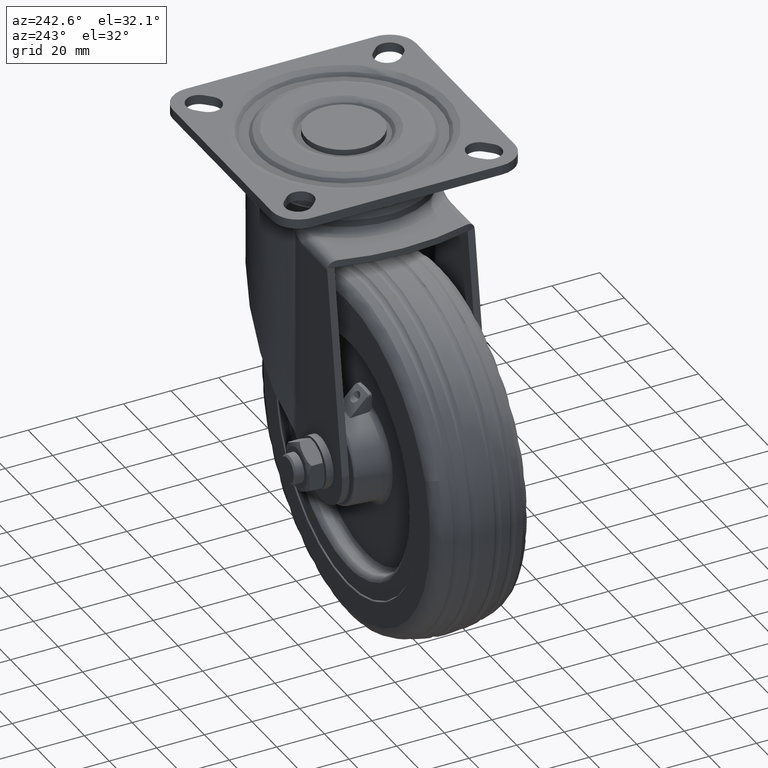
[diagram: clean part render]
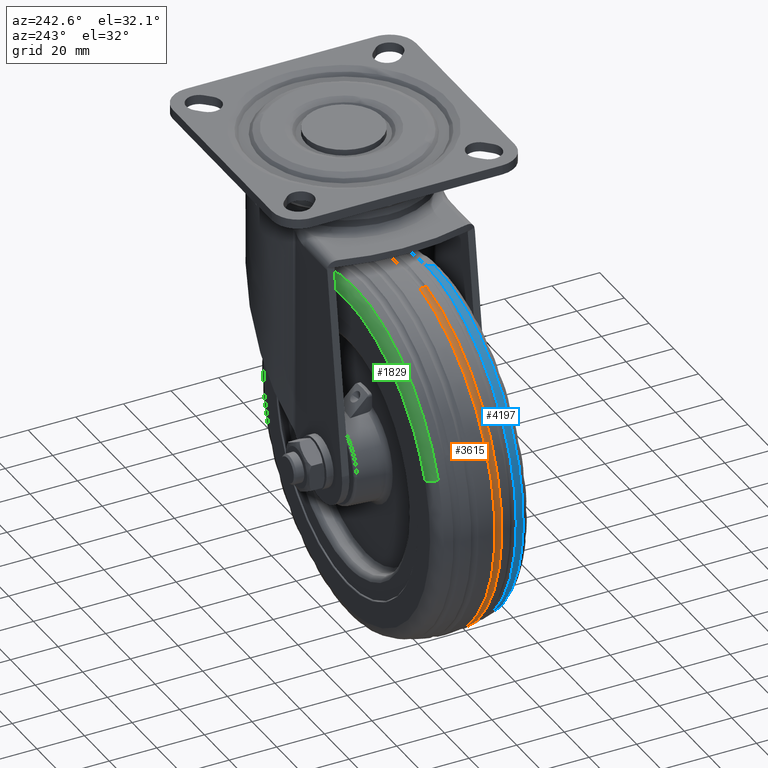
[diagram: same view with three faces highlighted in distinct colors, each labeled with its STEP entity id]
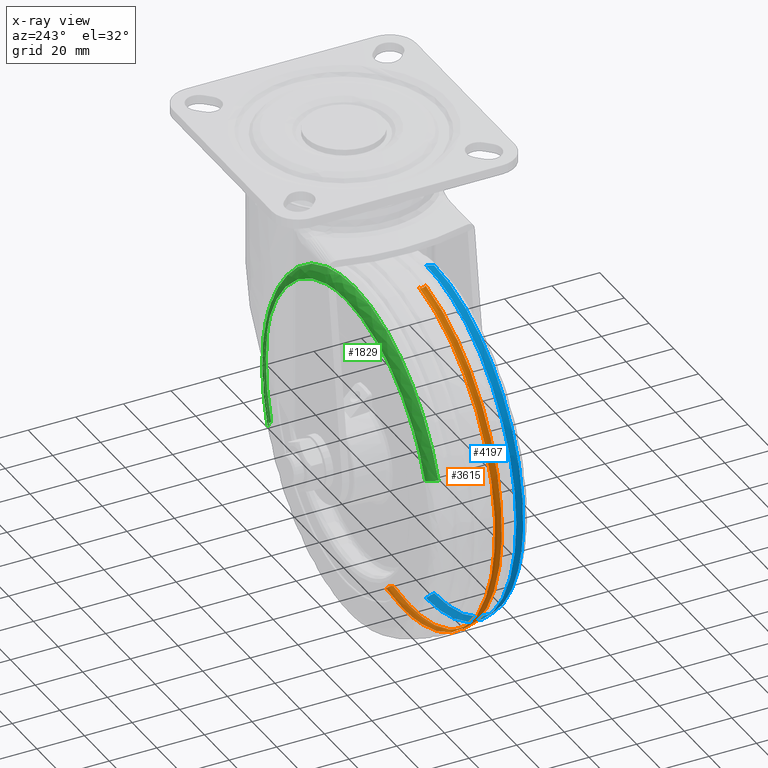
[diagram: x-ray of the same camera — body ghosted, the three highlighted faces saturated]
A machine part, auxiliary view with three faces highlighted in distinct colors.
The next image is the same camera in x-ray (body ghosted, the three faces saturated) — at least one of them is partly hidden behind the body in this view.
Their STEP definitions:

[orange] entity #3615 — the highlighted face is a freeform B-spline surface patch.
#3350=CARTESIAN_POINT('',(-41.0,-3.425194631083943,-189.882526454642200));
#3351=VERTEX_POINT('',#3350);
#3365=CARTESIAN_POINT('',(-54.106171554771272,-3.425193700810691,-41.273303924045237));
#3366=VERTEX_POINT('',#3365);
#3367=CARTESIAN_POINT('',(-54.106171554771272,-3.425193700810691,-41.273303924045237));
#3368=CARTESIAN_POINT('',(-59.088585388398997,-3.425193703578001,-42.158218080495992));
#3369=CARTESIAN_POINT('',(-66.076814817460104,-3.425193712112562,-44.148498641446317));
#3370=CARTESIAN_POINT('',(-75.449871957422616,-3.425193733126245,-48.358119332888712));
#3371=CARTESIAN_POINT('',(-82.964507859064014,-3.425193756129907,-52.724210285632239));
#3372=CARTESIAN_POINT('',(-90.196062801224429,-3.425193786793735,-58.298547319526122));
#3373=CARTESIAN_POINT('',(-96.897211100785654,-3.425193824162999,-64.905625726619689));
#3374=CARTESIAN_POINT('',(-103.135270140530390,-3.425193869280166,-72.719197845468472));
#3375=CARTESIAN_POINT('',(-108.962073340075800,-3.425193928425444,-82.754889275618893));
#3376=CARTESIAN_POINT('',(-112.907408585729400,-3.425193991189147,-93.207181730064121));
#3377=CARTESIAN_POINT('',(-114.826569593089500,-3.425194043701813,-101.830473245406490));
#3378=CARTESIAN_POINT('',(-115.756359178263000,-3.425194088655995,-109.149664701145800));
#3379=CARTESIAN_POINT('',(-115.999880357075700,-3.425194129868284,-115.805923495865500));
#3380=CARTESIAN_POINT('',(-115.543313813063410,-3.425194175875159,-123.172324231703000));
#3381=CARTESIAN_POINT('',(-114.339899230542700,-3.425194224510471,-130.896012707206210));
#3382=CARTESIAN_POINT('',(-112.310174145050990,-3.425194271620369,-138.301250586494600));
#3383=CARTESIAN_POINT('',(-109.208689514382200,-3.425194322726423,-146.255312482110900));
#3384=CARTESIAN_POINT('',(-105.402446680639900,-3.425194370342724,-153.585403521771410));
#3385=CARTESIAN_POINT('',(-99.813580089449673,-3.425194423771150,-161.693980646636110));
#3386=CARTESIAN_POINT('',(-93.697556373891643,-3.425194469248797,-168.476067422858900));
#3387=CARTESIAN_POINT('',(-87.561935301591760,-3.425194505529385,-173.775787977751090));
#3388=CARTESIAN_POINT('',(-81.332878370556259,-3.425194536721214,-178.248026610571910));
#3389=CARTESIAN_POINT('',(-74.046342225479833,-3.425194566706818,-182.432814771482410));
#3390=CARTESIAN_POINT('',(-65.740318916191441,-3.425194592523237,-185.856494542093910));
#3391=CARTESIAN_POINT('',(-58.356743329040633,-3.425194609514053,-187.940688253522500));
#3392=CARTESIAN_POINT('',(-50.397634055978251,-3.425194623292803,-189.457013815116710));
#3393=CARTESIAN_POINT('',(-44.759087268506420,-3.425194629026040,-189.882741367527390));
#3394=CARTESIAN_POINT('',(-41.0,-3.425194631083943,-189.882526454642200));
#3395=B_SPLINE_CURVE_WITH_KNOTS('',3,(#3367,#3368,#3369,#3370,#3371,#3372,#3373,#3374,#3375,#3376,#3377,#3378,#3379,#3380,#3381,#3382,#3383,#3384,#3385,#3386,#3387,#3388,#3389,#3390,#3391,#3392,#3393,#3394),.UNSPECIFIED.,.F.,.U.,(4,1,1,1,1,1,1,1,1,1,1,1,1,1,1,1,1,1,1,1,1,1,1,1,1,4),(0.000000041088072,15.180948157044270,21.687121852501750,30.795782922329270,41.205645045715130,49.013033233171463,58.989169884939322,71.133984156752234,83.712625231206204,92.387508197920283,97.592397441408707,105.833318303368700,112.339468420519910,119.713145880424800,129.255559615760890,135.327938458762500,145.304112468563400,153.978963686446690,164.822582168726400,172.629988714026810,178.268674288192900,187.811048654934300,197.787166627717000,205.160842032404300,210.799501256869800,222.076730637979100),.UNSPECIFIED.);
#3396=EDGE_CURVE('',#3366,#3351,#3395,.T.);
#3444=CARTESIAN_POINT('',(-27.893828445229339,-3.425193700818870,-188.726664075951310));
#3445=VERTEX_POINT('',#3444);
#3474=CARTESIAN_POINT('',(-41.0,-3.425194631083943,-189.882526454642200));
#3475=CARTESIAN_POINT('',(-34.395945232424147,-3.425194165951456,-189.882526200152940));
#3476=CARTESIAN_POINT('',(-27.893828445229339,-3.425193700818869,-188.726664075951250));
#3484=(BOUNDED_CURVE()B_SPLINE_CURVE(2,(#3474,#3475,#3476),.UNSPECIFIED.,.F.,.U.)B_SPLINE_CURVE_WITH_KNOTS((3,3),(0.0,0.030081746723663),.UNSPECIFIED.)CURVE()GEOMETRIC_REPRESENTATION_ITEM()RATIONAL_B_SPLINE_CURVE((1.0,0.964757041498302,0.937995441008128))REPRESENTATION_ITEM(''));
#3485=EDGE_CURVE('',#3351,#3445,#3484,.T.);
#3493=CARTESIAN_POINT('',(-52.022101943597974,-6.478191201165666,-41.060599357550444));
#3494=CARTESIAN_POINT('',(-53.044553421591843,-6.478191201165666,-41.242357500778176));
#3495=CARTESIAN_POINT('',(-127.652722590653870,-6.478191201165667,-54.505228736874912));
#3496=CARTESIAN_POINT('',(-114.573738926889520,-6.478191201165667,-128.078967663764420));
#3497=CARTESIAN_POINT('',(-101.494755263125090,-6.478191201165667,-201.652706590653910));
#3498=CARTESIAN_POINT('',(-26.886586094020778,-6.478191201165666,-188.389835354549600));
#3499=CARTESIAN_POINT('',(-25.864134615985613,-6.478191201165667,-188.208077211314530));
#3500=CARTESIAN_POINT('',(-51.894678024108963,-5.877915521829756,-41.915395134613526));
#3501=CARTESIAN_POINT('',(-52.905309181851763,-5.877915521829755,-42.095052014840100));
#3502=CARTESIAN_POINT('',(-126.650950913763500,-5.877915521829757,-55.204594326451314));
#3503=CARTESIAN_POINT('',(-113.723170293656080,-5.877915521829756,-127.927764620107410));
#3504=CARTESIAN_POINT('',(-100.795389673548670,-5.877915521829757,-200.650934913763420));
#3505=CARTESIAN_POINT('',(-27.049747941595157,-5.877915521829756,-187.541392602144810));
#3506=CARTESIAN_POINT('',(-26.039116783811540,-5.877915521829756,-187.361735721910970));
#3507=CARTESIAN_POINT('',(-51.909280309817454,-4.830605036026914,-41.817438862281513));
#3508=CARTESIAN_POINT('',(-52.921266030299840,-4.830605036026915,-41.997336539077629));
#3509=CARTESIAN_POINT('',(-126.765750052726370,-4.830605036026914,-55.124449749242984));
#3510=CARTESIAN_POINT('',(-113.820642151741690,-4.830605036026914,-127.945091900984710));
#3511=CARTESIAN_POINT('',(-100.875534250757000,-4.830605036026914,-200.765734052726400));
#3512=CARTESIAN_POINT('',(-27.031050228288574,-4.830605036026912,-187.638620842553540));
#3513=CARTESIAN_POINT('',(-26.019064507765322,-4.830605036026912,-187.458723165750140));
#3514=CARTESIAN_POINT('',(-51.924012549239762,-3.773973962346489,-41.718610823594823));
#3515=CARTESIAN_POINT('',(-52.937364887455189,-3.773973962346489,-41.898751439940646));
#3516=CARTESIAN_POINT('',(-126.881570851910890,-3.773973962346488,-55.043591921680644));
#3517=CARTESIAN_POINT('',(-113.918981465115120,-3.773973962346488,-127.962573386795800));
#3518=CARTESIAN_POINT('',(-100.956392078319370,-3.773973962346488,-200.881554851910950));
#3519=CARTESIAN_POINT('',(-27.012186113821766,-3.773973962346488,-187.736714370163380));
#3520=CARTESIAN_POINT('',(-25.998833775565416,-3.773973962346489,-187.556573753810370));
#3521=CARTESIAN_POINT('',(-52.067519821508846,-3.349917584211965,-40.755923356395670));
#3522=CARTESIAN_POINT('',(-53.094184432046312,-3.349917584211965,-40.938430455602997));
#3523=CARTESIAN_POINT('',(-128.009785408200430,-3.349917584211966,-54.255952925160564));
#3524=CARTESIAN_POINT('',(-114.876908241519970,-3.349917584211965,-128.132861166680560));
#3525=CARTESIAN_POINT('',(-101.744031074839410,-3.349917584211966,-202.009769408200550));
#3526=CARTESIAN_POINT('',(-26.828430098642819,-3.349917584211965,-188.692246938635410));
#3527=CARTESIAN_POINT('',(-25.801765488063886,-3.349917584211965,-188.509739839420630));
#3535=(BOUNDED_SURFACE()B_SPLINE_SURFACE(2,2,((#3493,#3500,#3507,#3514,#3521),(#3494,#3501,#3508,#3515,#3522),(#3495,#3502,#3509,#3516,#3523),(#3496,#3503,#3510,#3517,#3524),(#3497,#3504,#3511,#3518,#3525),(#3498,#3505,#3512,#3519,#3526),(#3499,#3506,#3513,#3520,#3527)),.UNSPECIFIED.,.F.,.F.,.U.)B_SPLINE_SURFACE_WITH_KNOTS((3,1,2,1,3),(3,2,3),(0.0,2.486445325414579,126.808711597482300,251.130977869550010,253.617423195066690),(0.0,1.950044101377510,3.914773002434539),.UNSPECIFIED.)GEOMETRIC_REPRESENTATION_ITEM()RATIONAL_B_SPLINE_SURFACE(((0.974451254258200,0.857243039817718,1.011715728752412,0.856079783821939,0.976231932865192),(0.968809152305602,0.852279576937794,1.005857864376206,0.851123056229075,0.970579520730117),(0.681061952720054,0.599142970058953,0.707106781186548,0.598329948990390,0.682306501838283),(0.963167050353004,0.847316114057869,1.0,0.846166328636212,0.964927108595043),(0.681061952720054,0.599142970058953,0.707106781186548,0.598329948990390,0.682306501838283),(0.968809152305834,0.852279576937998,1.005857864376447,0.851123056229279,0.970579520730349),(0.974451254258664,0.857243039818126,1.011715728752894,0.856079783822346,0.976231932865656)))REPRESENTATION_ITEM('')SURFACE());
#3536=CARTESIAN_POINT('',(-54.055320971032017,-6.374434103479643,-41.559355781395290));
#3537=VERTEX_POINT('',#3536);
#3538=CARTESIAN_POINT('',(-41.0,-6.374439039430699,-189.591985212157400));
#3539=VERTEX_POINT('',#3538);
#3540=CARTESIAN_POINT('',(-54.055320971032017,-6.374434103479643,-41.559355781395290));
#3541=CARTESIAN_POINT('',(-56.607647099952132,-6.374434111042556,-42.013028550092287));
#3542=CARTESIAN_POINT('',(-61.805433001831346,-6.374434135792914,-43.219478466765551));
#3543=CARTESIAN_POINT('',(-68.479684992595111,-6.374434193245906,-45.544542927649793));
#3544=CARTESIAN_POINT('',(-75.831834776637464,-6.374434281882766,-48.871890556435922));
#3545=CARTESIAN_POINT('',(-83.422138207054346,-6.374434407602831,-53.341043033348782));
#3546=CARTESIAN_POINT('',(-91.091999494289226,-6.374434587964413,-59.468695256119048));
#3547=CARTESIAN_POINT('',(-98.337976208499370,-6.374434812972061,-66.908344987861128));
#3548=CARTESIAN_POINT('',(-104.752031134525100,-6.374435083375700,-75.646674518203170));
#3549=CARTESIAN_POINT('',(-109.668269617102500,-6.374435388479166,-85.301674144388272));
#3550=CARTESIAN_POINT('',(-112.535958549391000,-6.374435650274609,-93.467077295954795));
#3551=CARTESIAN_POINT('',(-114.264443548496900,-6.374435876721877,-100.463633090571610));
#3552=CARTESIAN_POINT('',(-115.249592733345390,-6.374436086047404,-106.877186870634010));
#3553=CARTESIAN_POINT('',(-115.745940731345900,-6.374436346378328,-114.789187763200900));
#3554=CARTESIAN_POINT('',(-115.376360815016300,-6.374436605104429,-122.576266350014390));
#3555=CARTESIAN_POINT('',(-113.876617082133390,-6.374436910710432,-131.680714346486100));
#3556=CARTESIAN_POINT('',(-111.450471036373200,-6.374437197891409,-140.146430045822710));
#3557=CARTESIAN_POINT('',(-108.176290554079000,-6.374437457064232,-147.690933969464000));
#3558=CARTESIAN_POINT('',(-104.341617883660800,-6.374437697758042,-154.627469513468900));
#3559=CARTESIAN_POINT('',(-100.082899759377800,-6.374437914617417,-160.806224513343410));
#3560=CARTESIAN_POINT('',(-94.951701377747654,-6.374438123415766,-166.664428435302110));
#3561=CARTESIAN_POINT('',(-89.408098489330868,-6.374438313502378,-171.920698631769310));
#3562=CARTESIAN_POINT('',(-83.354844198230737,-6.374438485779542,-176.593759529217810));
#3563=CARTESIAN_POINT('',(-75.583037091574070,-6.374438664166184,-181.299908232499800));
#3564=CARTESIAN_POINT('',(-67.288866885226909,-6.374438811854255,-185.032156474606500));
#3565=CARTESIAN_POINT('',(-58.032239384907477,-6.374438931094750,-187.819734157224500));
#3566=CARTESIAN_POINT('',(-49.353091513216988,-6.374439005114120,-189.291452038512800));
#3567=CARTESIAN_POINT('',(-43.592325347166167,-6.374439031866907,-189.592014852746390));
#3568=CARTESIAN_POINT('',(-41.0,-6.374439039430699,-189.591985212157400));
#3569=B_SPLINE_CURVE_WITH_KNOTS('',3,(#3540,#3541,#3542,#3543,#3544,#3545,#3546,#3547,#3548,#3549,#3550,#3551,#3552,#3553,#3554,#3555,#3556,#3557,#3558,#3559,#3560,#3561,#3562,#3563,#3564,#3565,#3566,#3567,#3568),.UNSPECIFIED.,.F.,.U.,(4,1,1,1,1,1,1,1,1,1,1,1,1,1,1,1,1,1,1,1,1,1,1,1,1,1,4),(0.000000039307253,7.777002761487580,15.986174398455031,21.170909005507209,31.972464349255262,42.341947354229212,50.551111957836333,63.080913468387017,74.746576883078859,82.955713150643561,89.004623043913085,96.349554872982694,102.398507577165200,112.767709459844800,119.680807460281600,130.050192992668800,139.123545827819300,144.308281553571110,153.813595775333790,161.590711852244000,167.639569773498010,176.712874632226490,184.489934828835290,194.859457389372300,203.932772844203410,213.438100012580800,221.215089204902910),.UNSPECIFIED.);
#3570=EDGE_CURVE('',#3537,#3539,#3569,.T.);
#3571=ORIENTED_EDGE('',*,*,#3570,.F.);
#3572=CARTESIAN_POINT('',(-54.055320971032017,-6.374434103479643,-41.559355781395290));
#3573=CARTESIAN_POINT('',(-54.023785671168518,-6.222397391210849,-41.736752586753013));
#3574=CARTESIAN_POINT('',(-53.973474312802153,-5.860640981322565,-42.019771117932407));
#3575=CARTESIAN_POINT('',(-53.936883297784163,-5.172813045862656,-42.225608043485003));
#3576=CARTESIAN_POINT('',(-53.948353378590227,-4.508618610828050,-42.161084931311812));
#3577=CARTESIAN_POINT('',(-54.004052651274293,-3.867971985274149,-41.847757546596270));
#3578=CARTESIAN_POINT('',(-54.064473415746477,-3.556556686693893,-41.507870161987249));
#3579=CARTESIAN_POINT('',(-54.106171554771272,-3.425193700810691,-41.273303924045237));
#3580=B_SPLINE_CURVE_WITH_KNOTS('',3,(#3572,#3573,#3574,#3575,#3576,#3577,#3578,#3579),.UNSPECIFIED.,.F.,.U.,(4,1,1,1,1,4),(0.000000540529612,0.707167153674678,1.359953551933743,2.121466685956011,2.665458831980718,3.481410504775031),.UNSPECIFIED.);
#3581=EDGE_CURVE('',#3537,#3366,#3580,.T.);
#3582=ORIENTED_EDGE('',*,*,#3581,.T.);
#3583=ORIENTED_EDGE('',*,*,#3396,.T.);
#3584=ORIENTED_EDGE('',*,*,#3485,.T.);
#3585=CARTESIAN_POINT('',(-27.944679028965890,-6.374434103534465,-188.440612218616310));
#3586=VERTEX_POINT('',#3585);
#3587=CARTESIAN_POINT('',(-27.944679028965890,-6.374434103534465,-188.440612218616310));
#3588=CARTESIAN_POINT('',(-27.976219670591071,-6.222409258858821,-188.263185364029110));
#3589=CARTESIAN_POINT('',(-28.014432156920350,-5.947422683846056,-188.048227109973510));
#3590=CARTESIAN_POINT('',(-28.049171612033131,-5.458120838234855,-187.852805839702600));
#3591=CARTESIAN_POINT('',(-28.059732509500481,-5.040678998740226,-187.793397193474500));
#3592=CARTESIAN_POINT('',(-28.050344324083241,-4.569646778574471,-187.846208934826510));
#3593=CARTESIAN_POINT('',(-28.023626468982140,-4.157848620444619,-187.996505972118510));
#3594=CARTESIAN_POINT('',(-27.972204751060779,-3.739236553568442,-188.285770654017710));
#3595=CARTESIAN_POINT('',(-27.924381438243000,-3.521691928616186,-188.554793081301110));
#3596=CARTESIAN_POINT('',(-27.893828445229339,-3.425193700818870,-188.726664075951310));
#3597=B_SPLINE_CURVE_WITH_KNOTS('',3,(#3587,#3588,#3589,#3590,#3591,#3592,#3593,#3594,#3595,#3596),.UNSPECIFIED.,.F.,.U.,(4,1,1,1,1,1,1,4),(0.000000540528605,0.707167153686098,1.033561581310149,1.577554136212426,1.958286764450971,2.447846965634193,2.883048698638895,3.481410504833052),.UNSPECIFIED.);
#3598=EDGE_CURVE('',#3586,#3445,#3597,.T.);
#3599=ORIENTED_EDGE('',*,*,#3598,.F.);
#3600=CARTESIAN_POINT('',(-41.0,-6.374439039430699,-189.591985212157400));
#3601=CARTESIAN_POINT('',(-34.421568284976907,-6.374436571482899,-189.591987266573680));
#3602=CARTESIAN_POINT('',(-27.944679028965890,-6.374434103534465,-188.440612218616340));
#3610=(BOUNDED_CURVE()B_SPLINE_CURVE(2,(#3600,#3601,#3602),.UNSPECIFIED.,.F.,.U.)B_SPLINE_CURVE_WITH_KNOTS((3,3),(0.0,0.030081745835423),.UNSPECIFIED.)CURVE()GEOMETRIC_REPRESENTATION_ITEM()RATIONAL_B_SPLINE_CURVE((1.0,0.964757042538940,0.937995442588537))REPRESENTATION_ITEM(''));
#3611=EDGE_CURVE('',#3539,#3586,#3610,.T.);
#3612=ORIENTED_EDGE('',*,*,#3611,.F.);
#3613=EDGE_LOOP('',(#3571,#3582,#3583,#3584,#3599,#3612));
#3614=FACE_OUTER_BOUND('',#3613,.T.);
#3615=ADVANCED_FACE('',(#3614),#3535,.F.);

[blue] entity #4197 — the highlighted face is a freeform B-spline surface patch.
#3938=CARTESIAN_POINT('',(-73.008335306616743,-13.199708520911059,-49.139937153693708));
#3939=VERTEX_POINT('',#3938);
#3940=CARTESIAN_POINT('',(-41.0,-13.199713284810210,-188.226197674302800));
#3941=VERTEX_POINT('',#3940);
#3942=CARTESIAN_POINT('',(-73.008335306616743,-13.199708520911059,-49.139937153693708));
#3943=CARTESIAN_POINT('',(-76.928944069140172,-13.199708553529410,-51.044938360611233));
#3944=CARTESIAN_POINT('',(-84.207709843582478,-13.199708641530311,-55.425325413429633));
#3945=CARTESIAN_POINT('',(-93.145251864344957,-13.199708827054691,-63.185518936104010));
#3946=CARTESIAN_POINT('',(-100.460156952798100,-13.199709052816671,-71.809286523131135));
#3947=CARTESIAN_POINT('',(-105.757833571964700,-13.199709290233001,-80.327121790815426));
#3948=CARTESIAN_POINT('',(-109.945408797431400,-13.199709564046501,-89.708394602305177));
#3949=CARTESIAN_POINT('',(-112.432821231762700,-13.199709818017929,-98.088438620315330));
#3950=CARTESIAN_POINT('',(-113.803947610565800,-13.199710071203350,-106.187434464692200));
#3951=CARTESIAN_POINT('',(-114.310740055047010,-13.199710292251000,-113.099522800741600));
#3952=CARTESIAN_POINT('',(-114.140978254926300,-13.199710552308000,-121.055162786385200));
#3953=CARTESIAN_POINT('',(-112.965956579720900,-13.199710838541749,-129.584182401718210));
#3954=CARTESIAN_POINT('',(-110.673511806593400,-13.199711129839081,-138.011718234885590));
#3955=CARTESIAN_POINT('',(-107.940361674778400,-13.199711375567530,-144.936951088076800));
#3956=CARTESIAN_POINT('',(-104.295202030161410,-13.199711637564960,-152.152459257798310));
#3957=CARTESIAN_POINT('',(-98.913944926167986,-13.199711943095480,-160.306703155781490));
#3958=CARTESIAN_POINT('',(-92.140414526080477,-13.199712234653949,-167.711094528935400));
#3959=CARTESIAN_POINT('',(-85.653428780409570,-13.199712460415631,-173.158599280329900));
#3960=CARTESIAN_POINT('',(-79.024196386773781,-13.199712660532191,-177.785032407229690));
#3961=CARTESIAN_POINT('',(-70.974228871525511,-13.199712860832360,-182.090153060747010));
#3962=CARTESIAN_POINT('',(-62.151482867290639,-13.199713030544320,-185.277092608348910));
#3963=CARTESIAN_POINT('',(-52.281670129031482,-13.199713179974150,-187.599561217890310));
#3964=CARTESIAN_POINT('',(-45.487122776315111,-13.199713251238190,-188.226718542210510));
#3965=CARTESIAN_POINT('',(-41.0,-13.199713284810210,-188.226197674302800));
#3966=B_SPLINE_CURVE_WITH_KNOTS('',3,(#3942,#3943,#3944,#3945,#3946,#3947,#3948,#3949,#3950,#3951,#3952,#3953,#3954,#3955,#3956,#3957,#3958,#3959,#3960,#3961,#3962,#3963,#3964,#3965),.UNSPECIFIED.,.F.,.U.,(4,1,1,1,1,1,1,1,1,1,1,1,1,1,1,1,1,1,1,1,1,4),(0.000000145975093,13.076713491361661,25.384278465214411,35.384152736672917,46.922465578899050,55.383876439701481,66.153062593548015,73.076039908735339,79.999033356867159,86.921829143667765,96.921720133361973,105.767701967971600,113.075384277776000,119.229155547323100,129.998242076042200,142.305774797451590,149.228785637233610,155.382567902095500,166.536295001529200,176.536110054333900,183.459178778011390,196.920415473465200),.UNSPECIFIED.);
#3967=EDGE_CURVE('',#3939,#3941,#3966,.T.);
#4055=CARTESIAN_POINT('',(-41.0,-13.199713284721700,-41.773770325672970));
#4056=VERTEX_POINT('',#4055);
#4057=CARTESIAN_POINT('',(-41.0,-13.199713284721700,-41.773770325672970));
#4058=CARTESIAN_POINT('',(-57.851767120770866,-13.199710902814136,-41.773767953085105));
#4059=CARTESIAN_POINT('',(-73.008335306616743,-13.199708520911058,-49.139937153693708));
#4067=(BOUNDED_CURVE()B_SPLINE_CURVE(2,(#4057,#4058,#4059),.UNSPECIFIED.,.F.,.U.)B_SPLINE_CURVE_WITH_KNOTS((3,3),(0.500000000000000,0.574283290744430),.UNSPECIFIED.)CURVE()GEOMETRIC_REPRESENTATION_ITEM()RATIONAL_B_SPLINE_CURVE((1.0,0.912971711479234,0.877661404231893))REPRESENTATION_ITEM(''));
#4068=EDGE_CURVE('',#4056,#3939,#4067,.T.);
#4104=CARTESIAN_POINT('',(-38.984878101913402,-16.836649724866298,-42.919975227250610));
#4105=CARTESIAN_POINT('',(-38.966055560351862,-14.953986534377883,-42.246701336390601));
#4106=CARTESIAN_POINT('',(-38.951495848570666,-13.023574236935344,-41.725906959677069));
#4107=CARTESIAN_POINT('',(-39.986571268241711,-16.836649724866298,-42.919975227250603));
#4108=CARTESIAN_POINT('',(-39.977105188576118,-14.953986534377883,-42.246701336390593));
#4109=CARTESIAN_POINT('',(-39.969782936627396,-13.023574236935342,-41.725906959677069));
#4110=CARTESIAN_POINT('',(-113.080008772749420,-16.836649724866305,-42.919975227250617));
#4111=CARTESIAN_POINT('',(-113.753282663609430,-14.953986534377883,-42.246701336390601));
#4112=CARTESIAN_POINT('',(-114.274077040322940,-13.023574236935346,-41.725906959677076));
#4113=CARTESIAN_POINT('',(-113.080008772749470,-16.836649724866298,-114.999984000000050));
#4114=CARTESIAN_POINT('',(-113.753282663609470,-14.953986534377879,-114.999984000000080));
#4115=CARTESIAN_POINT('',(-114.274077040322980,-13.023574236935351,-114.999984000000050));
#4116=CARTESIAN_POINT('',(-113.080008772749420,-16.836649724866305,-187.079992772749420));
#4117=CARTESIAN_POINT('',(-113.753282663609430,-14.953986534377883,-187.753266663609420));
#4118=CARTESIAN_POINT('',(-114.274077040322940,-13.023574236935346,-188.274061040322890));
#4119=CARTESIAN_POINT('',(-39.986571268241711,-16.836649724866298,-187.079992772749390));
#4120=CARTESIAN_POINT('',(-39.977105188576097,-14.953986534377881,-187.753266663609370));
#4121=CARTESIAN_POINT('',(-39.969782936627375,-13.023574236935341,-188.274061040322920));
#4122=CARTESIAN_POINT('',(-38.984878101913381,-16.836649724866298,-187.079992772749420));
#4123=CARTESIAN_POINT('',(-38.966055560351833,-14.953986534377881,-187.753266663609420));
#4124=CARTESIAN_POINT('',(-38.951495848570637,-13.023574236935342,-188.274061040322950));
#4132=(BOUNDED_SURFACE()B_SPLINE_SURFACE(2,2,((#4104,#4107,#4110,#4113,#4116,#4119,#4122),(#4105,#4108,#4111,#4114,#4117,#4120,#4123),(#4106,#4109,#4112,#4115,#4118,#4121,#4124)),.UNSPECIFIED.,.F.,.F.,.U.)B_SPLINE_SURFACE_WITH_KNOTS((3,3),(3,1,2,1,3),(0.0,4.020163532347743),(0.0,2.428089318437833,123.832555240328900,245.237021162220090,247.665110480657890),.UNSPECIFIED.)GEOMETRIC_REPRESENTATION_ITEM()RATIONAL_B_SPLINE_SURFACE(((0.920238349463885,0.914910141853978,0.643171553748760,0.909581934244072,0.643171553748760,0.914910141853978,0.920238349463885),(0.913900225186317,0.908608715505842,0.638741721801601,0.903317205825366,0.638741721801601,0.908608715505842,0.913900225186317),(0.909057095517860,0.903793627703245,0.635356769157883,0.898530159888630,0.635356769157883,0.903793627703245,0.909057095517860)))REPRESENTATION_ITEM('')SURFACE());
#4133=CARTESIAN_POINT('',(-41.0,-16.666670909517620,-42.859533420971587));
#4134=VERTEX_POINT('',#4133);
#4135=CARTESIAN_POINT('',(-41.0,-16.666670909517613,-42.859533420971601));
#4136=CARTESIAN_POINT('',(-41.0,-14.952927982631888,-42.253633010631702));
#4137=CARTESIAN_POINT('',(-41.000000000000014,-13.199713284721700,-41.773770325672970));
#4145=(BOUNDED_CURVE()B_SPLINE_CURVE(2,(#4135,#4136,#4137),.UNSPECIFIED.,.F.,.U.)B_SPLINE_CURVE_WITH_KNOTS((3,3),(0.421434545361156,0.438465316593229),.UNSPECIFIED.)CURVE()GEOMETRIC_REPRESENTATION_ITEM()RATIONAL_B_SPLINE_CURVE((0.909015982833131,0.903381269666288,0.898968003143443))REPRESENTATION_ITEM(''));
#4146=EDGE_CURVE('',#4134,#4056,#4145,.T.);
#4147=ORIENTED_EDGE('',*,*,#4146,.T.);
#4148=ORIENTED_EDGE('',*,*,#4068,.T.);
#4149=ORIENTED_EDGE('',*,*,#3967,.T.);
#4150=CARTESIAN_POINT('',(-41.0,-16.666670929806070,-187.140434636258900));
#4151=VERTEX_POINT('',#4150);
#4152=CARTESIAN_POINT('',(-41.000000000000007,-16.666670929806074,-187.140434636258960));
#4153=CARTESIAN_POINT('',(-41.0,-14.952927992820017,-187.746335017970070));
#4154=CARTESIAN_POINT('',(-41.0,-13.199713284810214,-188.226197674302770));
#4162=(BOUNDED_CURVE()B_SPLINE_CURVE(2,(#4152,#4153,#4154),.UNSPECIFIED.,.F.,.U.)B_SPLINE_CURVE_WITH_KNOTS((3,3),(0.421434545360915,0.438465316592801),.UNSPECIFIED.)CURVE()GEOMETRIC_REPRESENTATION_ITEM()RATIONAL_B_SPLINE_CURVE((0.909015982833291,0.903381269666492,0.898968003143665))REPRESENTATION_ITEM(''));
#4163=EDGE_CURVE('',#4151,#3941,#4162,.T.);
#4164=ORIENTED_EDGE('',*,*,#4163,.F.);
#4165=CARTESIAN_POINT('',(-109.027762915803190,-16.666670729071090,-139.009736173296800));
#4166=VERTEX_POINT('',#4165);
#4167=CARTESIAN_POINT('',(-109.027762915803240,-16.666670729071090,-139.009736173296830));
#4168=CARTESIAN_POINT('',(-92.040490121009597,-16.666670832822586,-187.140434544769560));
#4169=CARTESIAN_POINT('',(-41.0,-16.666670929806070,-187.140434636258900));
#4177=(BOUNDED_CURVE()B_SPLINE_CURVE(2,(#4167,#4168,#4169),.UNSPECIFIED.,.F.,.U.)B_SPLINE_CURVE_WITH_KNOTS((3,3),(0.806548786482538,1.0),.UNSPECIFIED.)CURVE()GEOMETRIC_REPRESENTATION_ITEM()RATIONAL_B_SPLINE_CURVE((0.897469271508528,0.773357805558008,1.0))REPRESENTATION_ITEM(''));
#4178=EDGE_CURVE('',#4166,#4151,#4177,.T.);
#4179=ORIENTED_EDGE('',*,*,#4178,.F.);
#4180=CARTESIAN_POINT('',(-41.0,-16.666670909517620,-42.859533420971587));
#4181=CARTESIAN_POINT('',(-113.140451911602920,-16.666670840900299,-42.859533356241492));
#4182=CARTESIAN_POINT('',(-113.140451652382790,-16.666670754061052,-114.999983872395900));
#4183=CARTESIAN_POINT('',(-113.140451607980320,-16.666670739186145,-127.357096209667830));
#4184=CARTESIAN_POINT('',(-109.027762915803240,-16.666670729071090,-139.009736173296830));
#4192=(BOUNDED_CURVE()B_SPLINE_CURVE(2,(#4180,#4181,#4182,#4183,#4184),.UNSPECIFIED.,.F.,.U.)B_SPLINE_CURVE_WITH_KNOTS((3,2,3),(0.500000000000000,0.750000000000000,0.806548786482538),.UNSPECIFIED.)CURVE()GEOMETRIC_REPRESENTATION_ITEM()RATIONAL_B_SPLINE_CURVE((1.0,0.707106781186548,1.0,0.933748975628540,0.897469271508528))REPRESENTATION_ITEM(''));
#4193=EDGE_CURVE('',#4134,#4166,#4192,.T.);
#4194=ORIENTED_EDGE('',*,*,#4193,.F.);
#4195=EDGE_LOOP('',(#4147,#4148,#4149,#4164,#4179,#4194));
#4196=FACE_OUTER_BOUND('',#4195,.T.);
#4197=ADVANCED_FACE('',(#4196),#4132,.T.);

[green] entity #1829 — the highlighted face is a freeform B-spline surface patch.
#652=CARTESIAN_POINT('',(-104.295451191179590,20.000000000000320,-91.761949942617235));
#653=VERTEX_POINT('',#652);
#671=CARTESIAN_POINT('',(-41.0,20.000000000000249,-47.573577000000100));
#672=VERTEX_POINT('',#671);
#673=CARTESIAN_POINT('',(-41.0,20.000000000000249,-47.573577000000100));
#674=CARTESIAN_POINT('',(-88.072311958725834,20.000000000000284,-47.573576990521730));
#675=CARTESIAN_POINT('',(-104.295451191179620,20.000000000000323,-91.761949942617235));
#683=(BOUNDED_CURVE()B_SPLINE_CURVE(2,(#673,#674,#675),.UNSPECIFIED.,.F.,.U.)B_SPLINE_CURVE_WITH_KNOTS((3,3),(0.500000000000000,0.691460350125841),.UNSPECIFIED.)CURVE()GEOMETRIC_REPRESENTATION_ITEM()RATIONAL_B_SPLINE_CURVE((1.0,0.775690247105968,0.894951884817793))REPRESENTATION_ITEM(''));
#684=EDGE_CURVE('',#672,#653,#683,.T.);
#686=CARTESIAN_POINT('',(22.295451191179630,20.000000000000320,-138.238018057382790));
#687=VERTEX_POINT('',#686);
#688=CARTESIAN_POINT('',(22.295451191179630,20.000000000000323,-138.238018057382730));
#689=CARTESIAN_POINT('',(26.426407048430040,20.000000000000316,-126.986174875640980));
#690=CARTESIAN_POINT('',(26.426407043840609,20.000000000000309,-114.999984016095500));
#691=CARTESIAN_POINT('',(26.426407018023536,20.000000000000270,-47.573577006617228));
#692=CARTESIAN_POINT('',(-41.0,20.000000000000249,-47.573577000000100));
#700=(BOUNDED_CURVE()B_SPLINE_CURVE(2,(#688,#689,#690,#691,#692),.UNSPECIFIED.,.F.,.U.)B_SPLINE_CURVE_WITH_KNOTS((3,2,3),(0.191460350125841,0.250000000000000,0.500000000000000),.UNSPECIFIED.)CURVE()GEOMETRIC_REPRESENTATION_ITEM()RATIONAL_B_SPLINE_CURVE((0.894951884817793,0.931416534080580,1.0,0.707106781186547,1.0))REPRESENTATION_ITEM(''));
#701=EDGE_CURVE('',#687,#672,#700,.T.);
#1736=CARTESIAN_POINT('',(21.380527608775029,19.991841946956953,-139.901662148214030));
#1737=CARTESIAN_POINT('',(21.702098340164120,19.991841946956949,-139.025772022849170));
#1738=CARTESIAN_POINT('',(45.167072711754948,19.991841946956956,-75.112183695841040));
#1739=CARTESIAN_POINT('',(-17.860363796202009,19.991841946956949,-51.972547492043041));
#1740=CARTESIAN_POINT('',(-80.887800304158972,19.991841946956956,-28.832911288245050));
#1741=CARTESIAN_POINT('',(-104.352782178874880,19.991841946956953,-92.746520052166559));
#1742=CARTESIAN_POINT('',(-104.674360240116830,19.991841946956949,-93.622430142488227));
#1743=CARTESIAN_POINT('',(25.074709626142091,20.219253027577999,-141.376342391291330));
#1744=CARTESIAN_POINT('',(25.415323813217530,20.219253027577995,-140.448581951994440));
#1745=CARTESIAN_POINT('',(50.269896665044968,20.219253027577995,-72.750023575617490));
#1746=CARTESIAN_POINT('',(-16.490031879668781,20.219253027577992,-48.240055455286260));
#1747=CARTESIAN_POINT('',(-83.249960424382493,20.219253027577995,-23.730087334955048));
#1748=CARTESIAN_POINT('',(-108.104541223670950,20.219253027578006,-91.428667358521665));
#1749=CARTESIAN_POINT('',(-108.445163174673980,20.219253027577992,-92.356448945102372));
#1750=CARTESIAN_POINT('',(26.106885379757681,16.394749419305430,-141.788376553139470));
#1751=CARTESIAN_POINT('',(26.452820418142593,16.394749419305430,-140.846123249083550));
#1752=CARTESIAN_POINT('',(51.695655096760966,16.394749419305427,-72.090022419531991));
#1753=CARTESIAN_POINT('',(-16.107153241853492,16.394749419305437,-47.197175661385515));
#1754=CARTESIAN_POINT('',(-83.909961580467964,16.394749419305427,-22.304328903239014));
#1755=CARTESIAN_POINT('',(-109.152804330697420,16.394749419305430,-91.060451718138395));
#1756=CARTESIAN_POINT('',(-109.498747254292950,16.394749419305430,-92.002726499827162));
#1764=(BOUNDED_SURFACE()B_SPLINE_SURFACE(2,2,((#1736,#1743,#1750),(#1737,#1744,#1751),(#1738,#1745,#1752),(#1739,#1746,#1753),(#1740,#1747,#1754),(#1741,#1748,#1755),(#1742,#1749,#1756)),.UNSPECIFIED.,.F.,.F.,.U.)B_SPLINE_SURFACE_WITH_KNOTS((3,1,2,1,3),(3,3),(0.0,2.393423828027521,122.064585369078600,241.735746910129710,244.129226259946710),(0.0,6.993566619550616),.UNSPECIFIED.)GEOMETRIC_REPRESENTATION_ITEM()RATIONAL_B_SPLINE_SURFACE(((0.932087636523102,0.729005972333569,0.931911439877358),(0.926690819855149,0.724785004874755,0.926515643393513),(0.651453237120167,0.509515717135969,0.651330090035342),(0.921294003187196,0.720564037415941,0.921119846909669),(0.651453237120167,0.509515717135969,0.651330090035342),(0.926690945048571,0.724785102791248,0.926515768563270),(0.932087886909946,0.729006168166555,0.931911690216870)))REPRESENTATION_ITEM('')SURFACE());
#1765=CARTESIAN_POINT('',(26.720693962286418,16.666701979281179,-139.862633160649490));
#1766=VERTEX_POINT('',#1765);
#1767=CARTESIAN_POINT('',(-41.0,16.666696523111568,-42.859542412361790));
#1768=VERTEX_POINT('',#1767);
#1769=CARTESIAN_POINT('',(26.720693962286422,16.666701979281182,-139.862633160649470));
#1770=CARTESIAN_POINT('',(31.140446418547825,16.666701640703771,-127.824149893509810));
#1771=CARTESIAN_POINT('',(31.140446967319431,16.666701155733580,-114.999982075364100));
#1772=CARTESIAN_POINT('',(31.140450054352197,16.666698427606178,-42.859541621130795));
#1773=CARTESIAN_POINT('',(-41.0,16.666696523111568,-42.859542412361790));
#1781=(BOUNDED_CURVE()B_SPLINE_CURVE(2,(#1769,#1770,#1771,#1772,#1773),.UNSPECIFIED.,.F.,.U.)B_SPLINE_CURVE_WITH_KNOTS((3,2,3),(0.191460446547239,0.250000000000000,0.500000000000000),.UNSPECIFIED.)CURVE()GEOMETRIC_REPRESENTATION_ITEM()RATIONAL_B_SPLINE_CURVE((0.894952004940651,0.931416647045274,1.0,0.707106781186548,1.0))REPRESENTATION_ITEM(''));
#1782=EDGE_CURVE('',#1766,#1768,#1781,.T.);
#1783=ORIENTED_EDGE('',*,*,#1782,.F.);
#1784=CARTESIAN_POINT('',(22.295451191179630,20.000000000000323,-138.238018057382730));
#1785=CARTESIAN_POINT('',(25.614361363137284,20.000000691472575,-139.456483965948560));
#1786=CARTESIAN_POINT('',(26.720693962286418,16.666701979281179,-139.862633160649490));
#1794=(BOUNDED_CURVE()B_SPLINE_CURVE(2,(#1784,#1785,#1786),.UNSPECIFIED.,.F.,.U.)B_SPLINE_CURVE_WITH_KNOTS((3,3),(-1.680746704578347,-0.319903930164006),.UNSPECIFIED.)CURVE()GEOMETRIC_REPRESENTATION_ITEM()RATIONAL_B_SPLINE_CURVE((0.903890018498183,0.737960239130145,0.903731428410972))REPRESENTATION_ITEM(''));
#1795=EDGE_CURVE('',#687,#1766,#1794,.T.);
#1796=ORIENTED_EDGE('',*,*,#1795,.F.);
#1797=ORIENTED_EDGE('',*,*,#701,.T.);
#1798=ORIENTED_EDGE('',*,*,#684,.T.);
#1799=CARTESIAN_POINT('',(-108.720693962316400,16.666701979191089,-90.137334839339559));
#1800=VERTEX_POINT('',#1799);
#1801=CARTESIAN_POINT('',(-104.295451191179620,20.000000000000327,-91.761949942617235));
#1802=CARTESIAN_POINT('',(-107.614361363204570,20.000000691472568,-90.543484034026761));
#1803=CARTESIAN_POINT('',(-108.720693962316350,16.666701979191082,-90.137334839339559));
#1811=(BOUNDED_CURVE()B_SPLINE_CURVE(2,(#1801,#1802,#1803),.UNSPECIFIED.,.F.,.U.)B_SPLINE_CURVE_WITH_KNOTS((3,3),(-1.680746704578346,-0.319903930141485),.UNSPECIFIED.)CURVE()GEOMETRIC_REPRESENTATION_ITEM()RATIONAL_B_SPLINE_CURVE((0.903890018498183,0.737960239127399,0.903731428416458))REPRESENTATION_ITEM(''));
#1812=EDGE_CURVE('',#653,#1800,#1811,.T.);
#1813=ORIENTED_EDGE('',*,*,#1812,.T.);
#1814=CARTESIAN_POINT('',(-41.0,16.666696523111568,-42.859542412361790));
#1815=CARTESIAN_POINT('',(-91.363351942356502,16.666699251108732,-42.859543545720690));
#1816=CARTESIAN_POINT('',(-108.720693962316350,16.666701979191085,-90.137334839339559));
#1824=(BOUNDED_CURVE()B_SPLINE_CURVE(2,(#1814,#1815,#1816),.UNSPECIFIED.,.F.,.U.)B_SPLINE_CURVE_WITH_KNOTS((3,3),(0.500000000000000,0.691460446547429),.UNSPECIFIED.)CURVE()GEOMETRIC_REPRESENTATION_ITEM()RATIONAL_B_SPLINE_CURVE((1.0,0.775690134141050,0.894952004940888))REPRESENTATION_ITEM(''));
#1825=EDGE_CURVE('',#1768,#1800,#1824,.T.);
#1826=ORIENTED_EDGE('',*,*,#1825,.F.);
#1827=EDGE_LOOP('',(#1783,#1796,#1797,#1798,#1813,#1826));
#1828=FACE_OUTER_BOUND('',#1827,.T.);
#1829=ADVANCED_FACE('',(#1828),#1764,.T.);